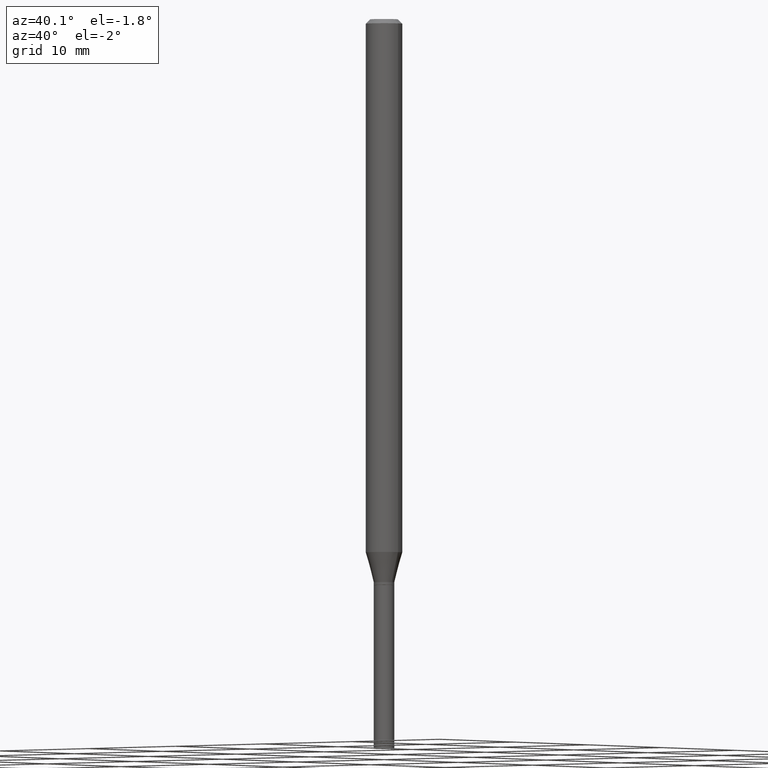
[diagram: clean part render]
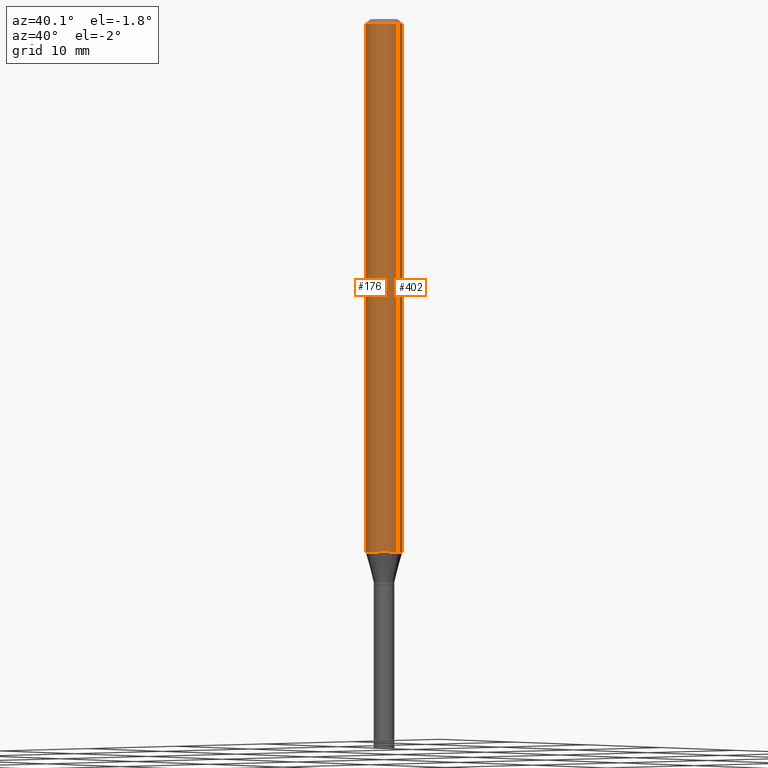
[diagram: same view with one multi-face feature highlighted, each face labeled with its STEP entity id]
A machine part, auxiliary view. The highlighted faces form ONE feature: a constant-radius fillet chain: 2 tangent blend faces with common blend radius 1.5875 mm. The faces share edges in the B-rep.
Their STEP definitions:
[1] entity #176 (Cylinder):
#21 = AXIS2_PLACEMENT_3D ( 'NONE', #81, #239, #272 ) ;
#31 = ORIENTED_EDGE ( 'NONE', *, *, #457, .F. ) ;
#34 = DIRECTION ( 'NONE',  ( 1.000000000000000000, -6.982962677686266711E-15, 4.876176775795935793E-29 ) ) ;
#38 = CARTESIAN_POINT ( 'NONE',  ( 0.000000000000000000, 0.000000000000000000, 0.000000000000000000 ) ) ;
#41 = AXIS2_PLACEMENT_3D ( 'NONE', #38, #360, #34 ) ;
#78 = ORIENTED_EDGE ( 'NONE', *, *, #266, .T. ) ;
#81 = CARTESIAN_POINT ( 'NONE',  ( 4.468772915529601294E-29, -6.380223375835637547E-15, -1.827368602791856089 ) ) ;
#91 = DIRECTION ( 'NONE',  ( -2.445468806185136877E-29, 3.491481338843145188E-15, 1.000000000000000000 ) ) ;
#104 = CYLINDRICAL_SURFACE ( 'NONE', #41, 0.06250000000000000000 ) ;
#117 = CARTESIAN_POINT ( 'NONE',  ( 0.06250000000000000000, -4.364351673553916694E-16, 3.047610484872459871E-30 ) ) ;
#141 = VERTEX_POINT ( 'NONE', #248 ) ;
#149 = VECTOR ( 'NONE', #91, 39.37007874015748143 ) ;
#161 = CARTESIAN_POINT ( 'NONE',  ( 3.668203209277705088E-31, -5.237222008264718399E-17, -0.01499999999999999944 ) ) ;
#176 = ADVANCED_FACE ( 'NONE', ( #365 ), #104, .T. ) ;
#177 = VECTOR ( 'NONE', #219, 39.37007874015748143 ) ;
#191 = LINE ( 'NONE', #117, #177 ) ;
#217 = VERTEX_POINT ( 'NONE', #304 ) ;
#219 = DIRECTION ( 'NONE',  ( -2.445468806185136877E-29, 3.491481338843145188E-15, 1.000000000000000000 ) ) ;
#231 = VERTEX_POINT ( 'NONE', #385 ) ;
#233 = LINE ( 'NONE', #379, #149 ) ;
#239 = DIRECTION ( 'NONE',  ( -2.445468806185136597E-29, 3.491481338843145583E-15, 1.000000000000000000 ) ) ;
#248 = CARTESIAN_POINT ( 'NONE',  ( 0.06250000000000000000, -6.816658543191029216E-15, -1.827368602791856089 ) ) ;
#252 = AXIS2_PLACEMENT_3D ( 'NONE', #161, #303, #376 ) ;
#257 = ORIENTED_EDGE ( 'NONE', *, *, #440, .F. ) ;
#266 = EDGE_CURVE ( 'NONE', #141, #231, #191, .T. ) ;
#270 = VERTEX_POINT ( 'NONE', #366 ) ;
#272 = DIRECTION ( 'NONE',  ( 1.000000000000000000, -6.982962677686262766E-15, 0.000000000000000000 ) ) ;
#303 = DIRECTION ( 'NONE',  ( -2.445468806185136597E-29, 3.491481338843145583E-15, 1.000000000000000000 ) ) ;
#304 = CARTESIAN_POINT ( 'NONE',  ( -0.06250000000000000000, -5.936134165985575719E-15, -1.827368602791856089 ) ) ;
#320 = CIRCLE ( 'NONE', #21, 0.06250000000000000000 ) ;
#360 = DIRECTION ( 'NONE',  ( -2.445468806185136597E-29, 3.491481338843145583E-15, 1.000000000000000000 ) ) ;
#365 = FACE_OUTER_BOUND ( 'NONE', #401, .T. ) ;
#366 = CARTESIAN_POINT ( 'NONE',  ( -0.06250000000000000000, -2.772208588109079894E-15, -0.01499999999999999944 ) ) ;
#376 = DIRECTION ( 'NONE',  ( 1.000000000000000000, -6.982962677686266711E-15, 0.000000000000000000 ) ) ;
#379 = CARTESIAN_POINT ( 'NONE',  ( -0.06250000000000000000, 4.440892098500626162E-16, -3.074334431409316114E-30 ) ) ;
#382 = ORIENTED_EDGE ( 'NONE', *, *, #432, .T. ) ;
#385 = CARTESIAN_POINT ( 'NONE',  ( 0.06250000000000000000, -4.888073874380388472E-16, -0.01499999999999999944 ) ) ;
#401 = EDGE_LOOP ( 'NONE', ( #257, #382, #78, #31 ) ) ;
#432 = EDGE_CURVE ( 'NONE', #217, #141, #320, .T. ) ;
#440 = EDGE_CURVE ( 'NONE', #217, #270, #233, .T. ) ;
#457 = EDGE_CURVE ( 'NONE', #270, #231, #464, .T. ) ;
#464 = CIRCLE ( 'NONE', #252, 0.06250000000000000000 ) ;
[2] entity #402 (Cylinder):
#29 = AXIS2_PLACEMENT_3D ( 'NONE', #200, #122, #169 ) ;
#53 = DIRECTION ( 'NONE',  ( -2.445468806185136597E-29, 3.491481338843145583E-15, 1.000000000000000000 ) ) ;
#91 = DIRECTION ( 'NONE',  ( -2.445468806185136877E-29, 3.491481338843145188E-15, 1.000000000000000000 ) ) ;
#111 = EDGE_LOOP ( 'NONE', ( #328, #336, #319, #333 ) ) ;
#117 = CARTESIAN_POINT ( 'NONE',  ( 0.06250000000000000000, -4.364351673553916694E-16, 3.047610484872459871E-30 ) ) ;
#122 = DIRECTION ( 'NONE',  ( -2.445468806185136597E-29, 3.491481338843145583E-15, 1.000000000000000000 ) ) ;
#124 = CIRCLE ( 'NONE', #29, 0.06250000000000000000 ) ;
#141 = VERTEX_POINT ( 'NONE', #248 ) ;
#149 = VECTOR ( 'NONE', #91, 39.37007874015748143 ) ;
#159 = FACE_OUTER_BOUND ( 'NONE', #111, .T. ) ;
#169 = DIRECTION ( 'NONE',  ( 1.000000000000000000, -6.982962677686266711E-15, 0.000000000000000000 ) ) ;
#177 = VECTOR ( 'NONE', #219, 39.37007874015748143 ) ;
#191 = LINE ( 'NONE', #117, #177 ) ;
#194 = AXIS2_PLACEMENT_3D ( 'NONE', #236, #53, #299 ) ;
#200 = CARTESIAN_POINT ( 'NONE',  ( 3.668203209277705088E-31, -5.237222008264718399E-17, -0.01499999999999999944 ) ) ;
#217 = VERTEX_POINT ( 'NONE', #304 ) ;
#219 = DIRECTION ( 'NONE',  ( -2.445468806185136877E-29, 3.491481338843145188E-15, 1.000000000000000000 ) ) ;
#231 = VERTEX_POINT ( 'NONE', #385 ) ;
#233 = LINE ( 'NONE', #379, #149 ) ;
#236 = CARTESIAN_POINT ( 'NONE',  ( 4.468772915529601294E-29, -6.380223375835637547E-15, -1.827368602791856089 ) ) ;
#248 = CARTESIAN_POINT ( 'NONE',  ( 0.06250000000000000000, -6.816658543191029216E-15, -1.827368602791856089 ) ) ;
#266 = EDGE_CURVE ( 'NONE', #141, #231, #191, .T. ) ;
#267 = DIRECTION ( 'NONE',  ( -2.445468806185136597E-29, 3.491481338843145583E-15, 1.000000000000000000 ) ) ;
#270 = VERTEX_POINT ( 'NONE', #366 ) ;
#299 = DIRECTION ( 'NONE',  ( 1.000000000000000000, -6.982962677686262766E-15, 0.000000000000000000 ) ) ;
#304 = CARTESIAN_POINT ( 'NONE',  ( -0.06250000000000000000, -5.936134165985575719E-15, -1.827368602791856089 ) ) ;
#319 = ORIENTED_EDGE ( 'NONE', *, *, #421, .F. ) ;
#328 = ORIENTED_EDGE ( 'NONE', *, *, #396, .T. ) ;
#333 = ORIENTED_EDGE ( 'NONE', *, *, #266, .F. ) ;
#336 = ORIENTED_EDGE ( 'NONE', *, *, #440, .T. ) ;
#366 = CARTESIAN_POINT ( 'NONE',  ( -0.06250000000000000000, -2.772208588109079894E-15, -0.01499999999999999944 ) ) ;
#379 = CARTESIAN_POINT ( 'NONE',  ( -0.06250000000000000000, 4.440892098500626162E-16, -3.074334431409316114E-30 ) ) ;
#381 = CARTESIAN_POINT ( 'NONE',  ( 0.000000000000000000, 0.000000000000000000, 0.000000000000000000 ) ) ;
#385 = CARTESIAN_POINT ( 'NONE',  ( 0.06250000000000000000, -4.888073874380388472E-16, -0.01499999999999999944 ) ) ;
#396 = EDGE_CURVE ( 'NONE', #141, #217, #398, .T. ) ;
#398 = CIRCLE ( 'NONE', #194, 0.06250000000000000000 ) ;
#402 = ADVANCED_FACE ( 'NONE', ( #159 ), #445, .T. ) ;
#408 = DIRECTION ( 'NONE',  ( 1.000000000000000000, -6.982962677686266711E-15, 4.876176775795935793E-29 ) ) ;
#421 = EDGE_CURVE ( 'NONE', #231, #270, #124, .T. ) ;
#440 = EDGE_CURVE ( 'NONE', #217, #270, #233, .T. ) ;
#445 = CYLINDRICAL_SURFACE ( 'NONE', #460, 0.06250000000000000000 ) ;
#460 = AXIS2_PLACEMENT_3D ( 'NONE', #381, #267, #408 ) ;